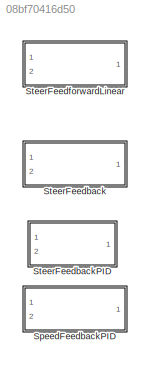
MODEL slx_08bf70416d50
KIND model
CONFIG AbsTol = auto
CONFIG EnableMultiTasking = off
CONFIG FixedStep = auto
CONFIG MaxStep = auto
CONFIG MinStep = auto
CONFIG RelTol = 1e-3
CONFIG SampleTimeConstraint = Unconstrained
CONFIG Solver = VariableStepAuto
CONFIG SolverName = VariableStepAuto
CONFIG StartTime = 0.0
CONFIG StopTime = 10.0
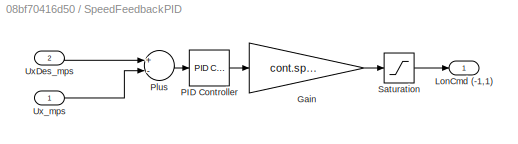
BLOCK [SubSystem] SpeedFeedbackPID
  Ports = [2, 1]
  RequestExecContextInheritance = off
BLOCK [Gain] SpeedFeedbackPID/Gain
  Gain = cont.speed_gain
  OutDataTypeStr = Inherit: Inherit via internal rule
  ParamDataTypeStr = Inherit: Inherit via internal rule
  SaturateOnIntegerOverflow = off
BLOCK [Outport] SpeedFeedbackPID/LonCmd (-1,1)
  IconDisplay = Port number
BLOCK [Reference] SpeedFeedbackPID/PID Controller  REF=simulink/Continuous/PID Controller
  Ports = [1, 1]
  SourceBlock = simulink/Continuous/PID Controller
  SourceProductBaseCode = SL
  SourceProductName = Simulink
  SourceType = PID 1dof
BLOCK [Sum] SpeedFeedbackPID/Plus
  InputSameDT = off
  Inputs = +-
  OutDataTypeStr = Inherit: Inherit via internal rule
  Ports = [2, 1]
  SaturateOnIntegerOverflow = off
BLOCK [Saturate] SpeedFeedbackPID/Saturation
  InputPortMap = u0
  LowerLimit = -1
  Ports = [1, 1]
  UpperLimit = +1
BLOCK [Inport] SpeedFeedbackPID/UxDes_mps
  IconDisplay = Port number
  Port = 2
BLOCK [Inport] SpeedFeedbackPID/Ux_mps
  IconDisplay = Port number
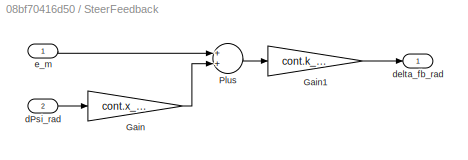
BLOCK [SubSystem] SteerFeedback
  Ports = [2, 1]
  RequestExecContextInheritance = off
BLOCK [Gain] SteerFeedback/Gain
  Gain = cont.x_la
  OutDataTypeStr = Inherit: Inherit via internal rule
  ParamDataTypeStr = Inherit: Inherit via internal rule
  SaturateOnIntegerOverflow = off
BLOCK [Gain] SteerFeedback/Gain1
  Gain = cont.k_fb
  OutDataTypeStr = Inherit: Inherit via internal rule
  ParamDataTypeStr = Inherit: Inherit via internal rule
  SaturateOnIntegerOverflow = off
BLOCK [Sum] SteerFeedback/Plus
  InputSameDT = off
  OutDataTypeStr = Inherit: Inherit via internal rule
  Ports = [2, 1]
  SaturateOnIntegerOverflow = off
BLOCK [Inport] SteerFeedback/dPsi_rad
  IconDisplay = Port number
  Port = 2
BLOCK [Outport] SteerFeedback/delta_fb_rad
  IconDisplay = Port number
BLOCK [Inport] SteerFeedback/e_m
  IconDisplay = Port number
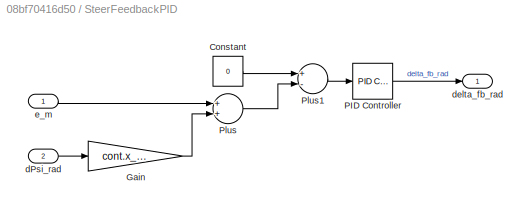
BLOCK [SubSystem] SteerFeedbackPID
  Ports = [2, 1]
  RequestExecContextInheritance = off
BLOCK [Constant] SteerFeedbackPID/Constant
  Value = 0
BLOCK [Gain] SteerFeedbackPID/Gain
  Gain = cont.x_la
  OutDataTypeStr = Inherit: Inherit via internal rule
  ParamDataTypeStr = Inherit: Inherit via internal rule
  SaturateOnIntegerOverflow = off
BLOCK [Reference] SteerFeedbackPID/PID Controller  REF=simulink/Continuous/PID Controller
  Ports = [1, 1]
  SourceBlock = simulink/Continuous/PID Controller
  SourceProductBaseCode = SL
  SourceProductName = Simulink
  SourceType = PID 1dof
BLOCK [Sum] SteerFeedbackPID/Plus
  InputSameDT = off
  OutDataTypeStr = Inherit: Inherit via internal rule
  Ports = [2, 1]
  SaturateOnIntegerOverflow = off
BLOCK [Sum] SteerFeedbackPID/Plus1
  InputSameDT = off
  Inputs = +-
  OutDataTypeStr = Inherit: Inherit via internal rule
  Ports = [2, 1]
  SaturateOnIntegerOverflow = off
BLOCK [Inport] SteerFeedbackPID/dPsi_rad
  IconDisplay = Port number
  Port = 2
BLOCK [Outport] SteerFeedbackPID/delta_fb_rad
  IconDisplay = Port number
BLOCK [Inport] SteerFeedbackPID/e_m
  IconDisplay = Port number
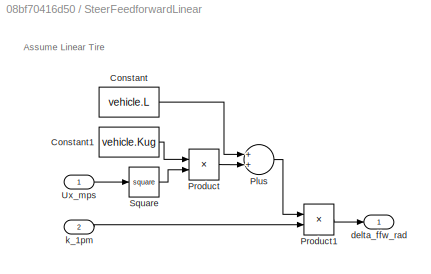
BLOCK [SubSystem] SteerFeedforwardLinear
  Ports = [2, 1]
  RequestExecContextInheritance = off
BLOCK [Constant] SteerFeedforwardLinear/Constant
  Value = vehicle.L
BLOCK [Constant] SteerFeedforwardLinear/Constant1
  Value = vehicle.Kug
BLOCK [Sum] SteerFeedforwardLinear/Plus
  InputSameDT = off
  OutDataTypeStr = Inherit: Inherit via internal rule
  Ports = [2, 1]
  SaturateOnIntegerOverflow = off
BLOCK [Product] SteerFeedforwardLinear/Product
  InputSameDT = off
  OutDataTypeStr = Inherit: Inherit via internal rule
  Ports = [2, 1]
  RndMeth = Floor
  SaturateOnIntegerOverflow = off
BLOCK [Product] SteerFeedforwardLinear/Product1
  InputSameDT = off
  OutDataTypeStr = Inherit: Inherit via internal rule
  Ports = [2, 1]
  RndMeth = Floor
  SaturateOnIntegerOverflow = off
BLOCK [Math] SteerFeedforwardLinear/Square
  Operator = square
  Ports = [1, 1]
BLOCK [Inport] SteerFeedforwardLinear/Ux_mps
  IconDisplay = Port number
BLOCK [Outport] SteerFeedforwardLinear/delta_ffw_rad
  IconDisplay = Port number
BLOCK [Inport] SteerFeedforwardLinear/k_1pm
  IconDisplay = Port number
  Port = 2
ANNOTATION SteerFeedforwardLinear: Assume Linear Tire
LINE SpeedFeedbackPID/Gain:1 -> SpeedFeedbackPID/Saturation:1
LINE SpeedFeedbackPID/PID Controller:1 -> SpeedFeedbackPID/Gain:1
LINE SpeedFeedbackPID/Plus:1 -> SpeedFeedbackPID/PID Controller:1
LINE SpeedFeedbackPID/Saturation:1 -> SpeedFeedbackPID/LonCmd (-1,1):1
LINE SpeedFeedbackPID/UxDes_mps:1 -> SpeedFeedbackPID/Plus:1
LINE SpeedFeedbackPID/Ux_mps:1 -> SpeedFeedbackPID/Plus:2
LINE SteerFeedback/Gain1:1 -> SteerFeedback/delta_fb_rad:1
LINE SteerFeedback/Gain:1 -> SteerFeedback/Plus:2
LINE SteerFeedback/Plus:1 -> SteerFeedback/Gain1:1
LINE SteerFeedback/dPsi_rad:1 -> SteerFeedback/Gain:1
LINE SteerFeedback/e_m:1 -> SteerFeedback/Plus:1
LINE SteerFeedbackPID/Constant:1 -> SteerFeedbackPID/Plus1:1
LINE SteerFeedbackPID/Gain:1 -> SteerFeedbackPID/Plus:2
LINE SteerFeedbackPID/PID Controller:1 -> SteerFeedbackPID/delta_fb_rad:1
LINE SteerFeedbackPID/Plus1:1 -> SteerFeedbackPID/PID Controller:1
LINE SteerFeedbackPID/Plus:1 -> SteerFeedbackPID/Plus1:2
LINE SteerFeedbackPID/dPsi_rad:1 -> SteerFeedbackPID/Gain:1
LINE SteerFeedbackPID/e_m:1 -> SteerFeedbackPID/Plus:1
LINE SteerFeedforwardLinear/Constant1:1 -> SteerFeedforwardLinear/Product:1
LINE SteerFeedforwardLinear/Constant:1 -> SteerFeedforwardLinear/Plus:1
LINE SteerFeedforwardLinear/Plus:1 -> SteerFeedforwardLinear/Product1:1
LINE SteerFeedforwardLinear/Product1:1 -> SteerFeedforwardLinear/delta_ffw_rad:1
LINE SteerFeedforwardLinear/Product:1 -> SteerFeedforwardLinear/Plus:2
LINE SteerFeedforwardLinear/Square:1 -> SteerFeedforwardLinear/Product:2
LINE SteerFeedforwardLinear/Ux_mps:1 -> SteerFeedforwardLinear/Square:1
LINE SteerFeedforwardLinear/k_1pm:1 -> SteerFeedforwardLinear/Product1:2
